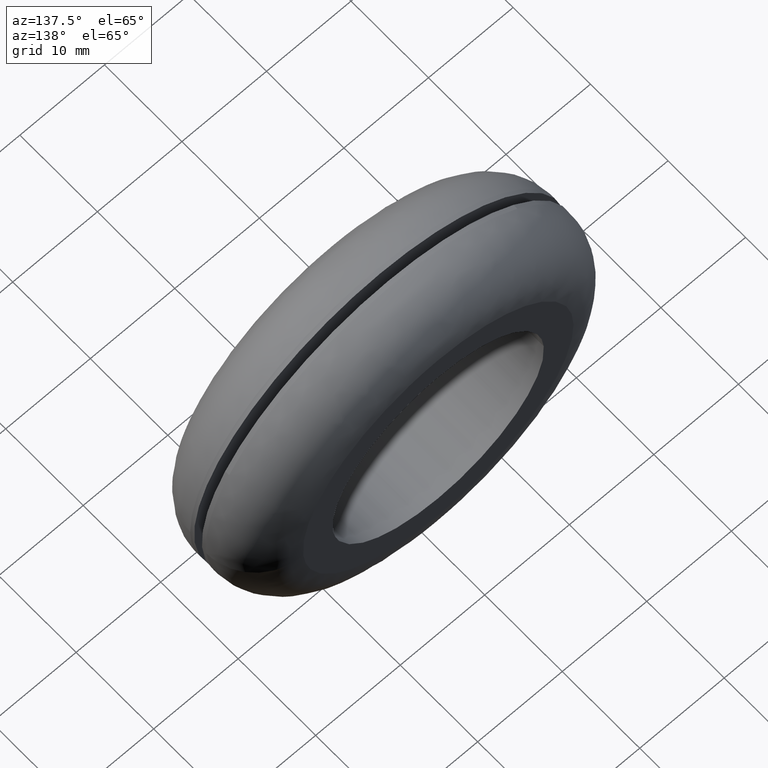
[diagram: clean part render]
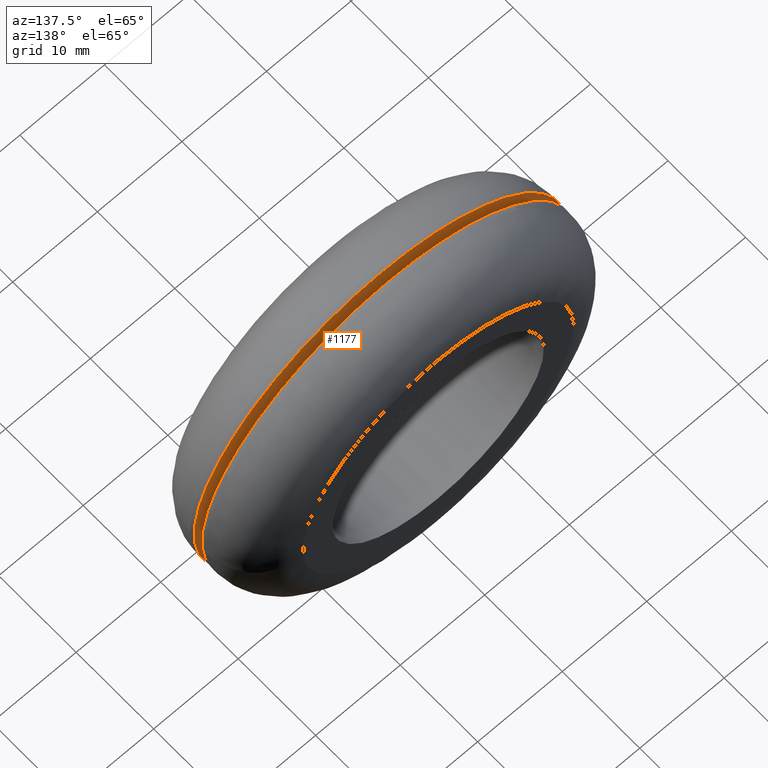
[diagram: same view with one face highlighted and labeled with its STEP entity id]
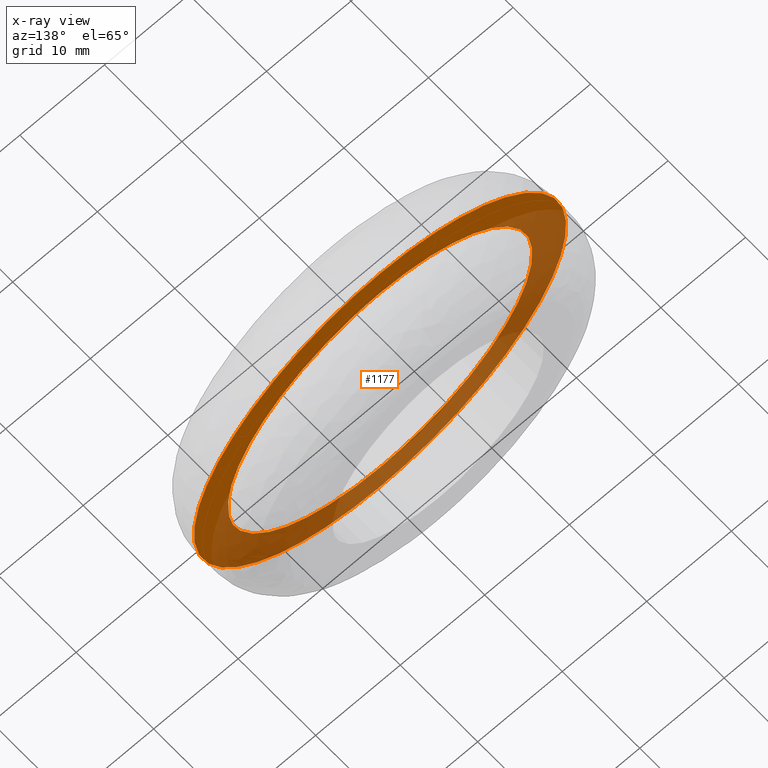
[diagram: x-ray of the same camera — body ghosted, the highlighted face saturated]
A machine part, auxiliary view. The second image highlights one B-rep face of the part: STEP entity #1177.
The next image is the same camera in x-ray: the body ghosted, the highlighted face saturated — about 54% of this face is hidden behind the body in this view.
In plain terms, the highlighted face is a freeform B-spline surface patch.
Its self-contained STEP definition (entity closure, byte-faithful):
#87=CARTESIAN_POINT('',(11.940031622767791,6.500000000000000,-18.477977293180370));
#88=VERTEX_POINT('',#87);
#94=CARTESIAN_POINT('',(0.0,6.500000000000000,22.0));
#95=VERTEX_POINT('',#94);
#96=CARTESIAN_POINT('',(11.940031622767791,6.500000000000000,-18.477977293180373));
#97=CARTESIAN_POINT('',(22.000000000000004,6.500000000000000,-11.977463809352264));
#98=CARTESIAN_POINT('',(22.0,6.500000000000000,-3.673819E-016));
#99=CARTESIAN_POINT('',(22.000000000000007,6.500000000000001,22.000000000000007));
#100=CARTESIAN_POINT('',(0.0,6.500000000000000,22.0));
#108=(BOUNDED_CURVE()B_SPLINE_CURVE(2,(#96,#97,#98,#99,#100),.UNSPECIFIED.,.F.,.U.)B_SPLINE_CURVE_WITH_KNOTS((3,2,3),(0.092934715438809,0.250000000000000,0.500000000000000),.UNSPECIFIED.)CURVE()GEOMETRIC_REPRESENTATION_ITEM()RATIONAL_B_SPLINE_CURVE((0.863190116171980,0.815986572964088,1.0,0.707106781186548,1.0))REPRESENTATION_ITEM(''));
#109=EDGE_CURVE('',#88,#95,#108,.T.);
#111=CARTESIAN_POINT('',(-16.975742520003529,6.500000000000000,-13.993718801467210));
#112=VERTEX_POINT('',#111);
#113=CARTESIAN_POINT('',(0.0,6.500000000000000,22.0));
#114=CARTESIAN_POINT('',(-22.000000000000007,6.500000000000001,22.000000000000007));
#115=CARTESIAN_POINT('',(-22.0,6.500000000000000,-3.673819E-016));
#116=CARTESIAN_POINT('',(-22.000000000000007,6.500000000000001,-7.898805609008632));
#117=CARTESIAN_POINT('',(-16.975742520003532,6.500000000000000,-13.993718801467210));
#125=(BOUNDED_CURVE()B_SPLINE_CURVE(2,(#113,#114,#115,#116,#117),.UNSPECIFIED.,.F.,.U.)B_SPLINE_CURVE_WITH_KNOTS((3,2,3),(0.500000000000000,0.750000000000000,0.860504607643865),.UNSPECIFIED.)CURVE()GEOMETRIC_REPRESENTATION_ITEM()RATIONAL_B_SPLINE_CURVE((1.0,0.707106781186548,1.0,0.870535799093882,0.855522723988222))REPRESENTATION_ITEM(''));
#126=EDGE_CURVE('',#95,#112,#125,.T.);
#228=CARTESIAN_POINT('',(0.0,6.500000000000000,-22.0));
#229=VERTEX_POINT('',#228);
#230=CARTESIAN_POINT('',(-16.975742520003532,6.500000000000000,-13.993718801467210));
#231=CARTESIAN_POINT('',(-10.375875232565738,6.500000000000001,-22.0));
#232=CARTESIAN_POINT('',(0.0,6.500000000000000,-22.0));
#240=(BOUNDED_CURVE()B_SPLINE_CURVE(2,(#230,#231,#232),.UNSPECIFIED.,.F.,.U.)B_SPLINE_CURVE_WITH_KNOTS((3,3),(0.860504607643865,1.0),.UNSPECIFIED.)CURVE()GEOMETRIC_REPRESENTATION_ITEM()RATIONAL_B_SPLINE_CURVE((0.855522723988222,0.836570982092665,1.0))REPRESENTATION_ITEM(''));
#241=EDGE_CURVE('',#112,#229,#240,.T.);
#243=CARTESIAN_POINT('',(0.0,6.500000000000000,-22.0));
#244=CARTESIAN_POINT('',(6.489471887350197,6.500000000000000,-22.0));
#245=CARTESIAN_POINT('',(11.940031622767792,6.500000000000000,-18.477977293180377));
#253=(BOUNDED_CURVE()B_SPLINE_CURVE(2,(#243,#244,#245),.UNSPECIFIED.,.F.,.U.)B_SPLINE_CURVE_WITH_KNOTS((3,3),(0.0,0.092934715438809),.UNSPECIFIED.)CURVE()GEOMETRIC_REPRESENTATION_ITEM()RATIONAL_B_SPLINE_CURVE((1.0,0.891120208222460,0.863190116171979))REPRESENTATION_ITEM(''));
#254=EDGE_CURVE('',#229,#88,#253,.T.);
#282=CARTESIAN_POINT('',(17.874172393240940,6.499999999999577,-2.124608494909751));
#283=VERTEX_POINT('',#282);
#284=CARTESIAN_POINT('',(0.0,6.500000000000000,18.0));
#285=VERTEX_POINT('',#284);
#286=CARTESIAN_POINT('',(17.874172393240944,6.499999999999577,-2.124608494909752));
#287=CARTESIAN_POINT('',(18.0,6.500000000000000,-1.066030248424147));
#288=CARTESIAN_POINT('',(18.0,6.500000000000000,-3.673819E-016));
#289=CARTESIAN_POINT('',(18.000000000000007,6.500000000000000,18.000000000000007));
#290=CARTESIAN_POINT('',(0.0,6.500000000000000,18.0));
#298=(BOUNDED_CURVE()B_SPLINE_CURVE(2,(#286,#287,#288,#289,#290),.UNSPECIFIED.,.F.,.U.)B_SPLINE_CURVE_WITH_KNOTS((3,2,3),(0.229562546593787,0.250000000000000,0.500000000000000),.UNSPECIFIED.)CURVE()GEOMETRIC_REPRESENTATION_ITEM()RATIONAL_B_SPLINE_CURVE((0.956026897424087,0.976056033950018,1.0,0.707106781186547,1.0))REPRESENTATION_ITEM(''));
#299=EDGE_CURVE('',#283,#285,#298,.T.);
#340=CARTESIAN_POINT('',(-17.966427395491010,6.500000000000795,1.098856970796745));
#341=VERTEX_POINT('',#340);
#347=CARTESIAN_POINT('',(0.0,6.500000000000000,18.0));
#348=CARTESIAN_POINT('',(-16.932725011421432,6.500000000000001,18.0));
#349=CARTESIAN_POINT('',(-17.966427395491017,6.500000000000795,1.098856970796745));
#357=(BOUNDED_CURVE()B_SPLINE_CURVE(2,(#347,#348,#349),.UNSPECIFIED.,.F.,.U.)B_SPLINE_CURVE_WITH_KNOTS((3,3),(0.500000000000000,0.739333123018345),.UNSPECIFIED.)CURVE()GEOMETRIC_REPRESENTATION_ITEM()RATIONAL_B_SPLINE_CURVE((1.0,0.719603804921923,0.976072386247825))REPRESENTATION_ITEM(''));
#358=EDGE_CURVE('',#285,#341,#357,.T.);
#381=CARTESIAN_POINT('',(0.0,6.500000000000000,-18.0));
#382=VERTEX_POINT('',#381);
#383=CARTESIAN_POINT('',(0.0,6.500000000000000,-18.0));
#384=CARTESIAN_POINT('',(15.987148428738006,6.500000000000003,-18.000000000000007));
#385=CARTESIAN_POINT('',(17.874172393240944,6.499999999999577,-2.124608494909752));
#393=(BOUNDED_CURVE()B_SPLINE_CURVE(2,(#383,#384,#385),.UNSPECIFIED.,.F.,.U.)B_SPLINE_CURVE_WITH_KNOTS((3,3),(0.0,0.229562546593787),.UNSPECIFIED.)CURVE()GEOMETRIC_REPRESENTATION_ITEM()RATIONAL_B_SPLINE_CURVE((1.0,0.731050747236530,0.956026897424087))REPRESENTATION_ITEM(''));
#394=EDGE_CURVE('',#382,#283,#393,.T.);
#396=CARTESIAN_POINT('',(-17.966427395491017,6.500000000000795,1.098856970796745));
#397=CARTESIAN_POINT('',(-17.999999999999996,6.499999999999999,0.549941345490025));
#398=CARTESIAN_POINT('',(-18.0,6.500000000000000,-3.673819E-016));
#399=CARTESIAN_POINT('',(-18.000000000000007,6.500000000000000,-18.000000000000007));
#400=CARTESIAN_POINT('',(0.0,6.500000000000000,-18.0));
#408=(BOUNDED_CURVE()B_SPLINE_CURVE(2,(#396,#397,#398,#399,#400),.UNSPECIFIED.,.F.,.U.)B_SPLINE_CURVE_WITH_KNOTS((3,2,3),(0.739333123018345,0.750000000000000,1.0),.UNSPECIFIED.)CURVE()GEOMETRIC_REPRESENTATION_ITEM()RATIONAL_B_SPLINE_CURVE((0.976072386247825,0.987502976264624,1.0,0.707106781186547,1.0))REPRESENTATION_ITEM(''));
#409=EDGE_CURVE('',#341,#382,#408,.T.);
#1160=CARTESIAN_POINT('',(-24.195818088226311,6.500000000000000,24.197799914719461));
#1161=CARTESIAN_POINT('',(-24.195818088226311,6.500000000000000,-24.197801094891432));
#1162=CARTESIAN_POINT('',(24.187301967315658,6.500000000000000,24.197799914719461));
#1163=CARTESIAN_POINT('',(24.187301967315658,6.500000000000000,-24.197801094891432));
#1164=B_SPLINE_SURFACE_WITH_KNOTS('',1,1,((#1160,#1162),(#1161,#1163)),.UNSPECIFIED.,.F.,.F.,.U.,(2,2),(2,2),(0.0,48.395601009610893),(0.0,48.383120055541973),.UNSPECIFIED.);
#1165=ORIENTED_EDGE('',*,*,#241,.F.);
#1166=ORIENTED_EDGE('',*,*,#126,.F.);
#1167=ORIENTED_EDGE('',*,*,#109,.F.);
#1168=ORIENTED_EDGE('',*,*,#254,.F.);
#1169=EDGE_LOOP('',(#1165,#1166,#1167,#1168));
#1170=FACE_OUTER_BOUND('',#1169,.T.);
#1171=ORIENTED_EDGE('',*,*,#358,.T.);
#1172=ORIENTED_EDGE('',*,*,#409,.T.);
#1173=ORIENTED_EDGE('',*,*,#394,.T.);
#1174=ORIENTED_EDGE('',*,*,#299,.T.);
#1175=EDGE_LOOP('',(#1171,#1172,#1173,#1174));
#1176=FACE_BOUND('',#1175,.T.);
#1177=ADVANCED_FACE('',(#1170,#1176),#1164,.F.);